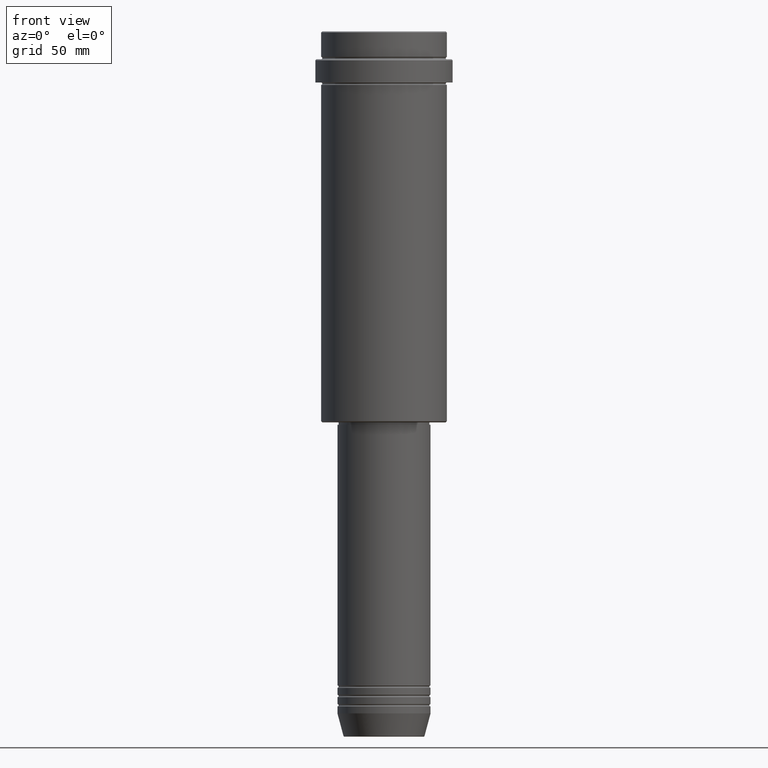
[diagram: clean part render]
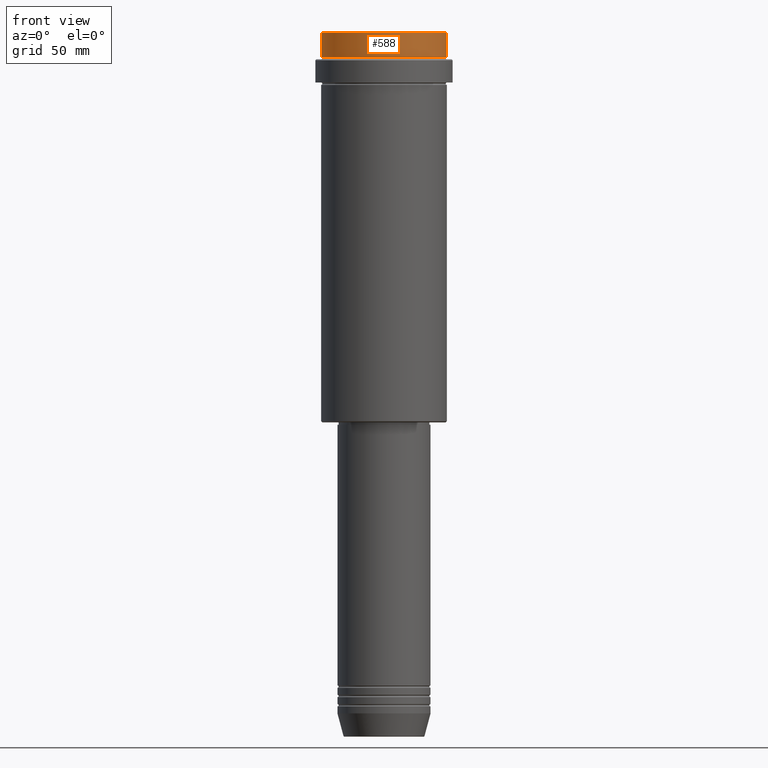
[diagram: same view with one face highlighted and labeled with its STEP entity id]
A machine part, front view. The second image highlights one B-rep face of the part: STEP entity #588.
In plain terms, the highlighted cylindrical surface (partial cylindrical patch) has radius 27 mm, axis along (-0, -0, 1).
Its self-contained STEP definition (entity closure, byte-faithful):
#12 = DIRECTION ( 'NONE',  ( 1.000000000000000000, 0.000000000000000000, 0.000000000000000000 ) ) ;
#32 = CARTESIAN_POINT ( 'NONE',  ( -27.00000000000000355, 3.306546357697854128E-15, -11.00000000000000178 ) ) ;
#34 = CARTESIAN_POINT ( 'NONE',  ( -27.00000000000000355, 3.306546357697854128E-15, -0.5000000000000073275 ) ) ;
#37 = CIRCLE ( 'NONE', #382, 27.00000000000000355 ) ;
#41 = FACE_OUTER_BOUND ( 'NONE', #883, .T. ) ;
#83 = VERTEX_POINT ( 'NONE', #32 ) ;
#85 = ORIENTED_EDGE ( 'NONE', *, *, #939, .T. ) ;
#95 = CIRCLE ( 'NONE', #983, 27.00000000000000355 ) ;
#107 = DIRECTION ( 'NONE',  ( 0.000000000000000000, 0.000000000000000000, -1.000000000000000000 ) ) ;
#116 = CYLINDRICAL_SURFACE ( 'NONE', #361, 27.00000000000000355 ) ;
#331 = ORIENTED_EDGE ( 'NONE', *, *, #570, .T. ) ;
#361 = AXIS2_PLACEMENT_3D ( 'NONE', #915, #1109, #688 ) ;
#382 = AXIS2_PLACEMENT_3D ( 'NONE', #994, #107, #12 ) ;
#403 = VECTOR ( 'NONE', #440, 1000.000000000000000 ) ;
#440 = DIRECTION ( 'NONE',  ( -0.000000000000000000, -0.000000000000000000, 1.000000000000000000 ) ) ;
#464 = DIRECTION ( 'NONE',  ( -0.000000000000000000, -0.000000000000000000, 1.000000000000000000 ) ) ;
#534 = LINE ( 'NONE', #980, #403 ) ;
#567 = CARTESIAN_POINT ( 'NONE',  ( 0.000000000000000000, 0.000000000000000000, -11.00000000000000178 ) ) ;
#570 = EDGE_CURVE ( 'NONE', #83, #737, #95, .T. ) ;
#574 = CARTESIAN_POINT ( 'NONE',  ( 27.00000000000000355, 0.000000000000000000, -11.00000000000000178 ) ) ;
#588 = ADVANCED_FACE ( 'NONE', ( #41 ), #116, .T. ) ;
#688 = DIRECTION ( 'NONE',  ( 1.000000000000000000, 0.000000000000000000, 0.000000000000000000 ) ) ;
#737 = VERTEX_POINT ( 'NONE', #574 ) ;
#755 = VECTOR ( 'NONE', #1328, 1000.000000000000000 ) ;
#854 = EDGE_CURVE ( 'NONE', #884, #1062, #37, .T. ) ;
#876 = CARTESIAN_POINT ( 'NONE',  ( -27.00000000000000355, 3.306546357697854128E-15, 0.000000000000000000 ) ) ;
#882 = EDGE_CURVE ( 'NONE', #83, #1062, #1107, .T. ) ;
#883 = EDGE_LOOP ( 'NONE', ( #1017, #331, #85, #1282 ) ) ;
#884 = VERTEX_POINT ( 'NONE', #1056 ) ;
#915 = CARTESIAN_POINT ( 'NONE',  ( 0.000000000000000000, 0.000000000000000000, 0.000000000000000000 ) ) ;
#939 = EDGE_CURVE ( 'NONE', #737, #884, #534, .T. ) ;
#980 = CARTESIAN_POINT ( 'NONE',  ( 27.00000000000000355, 0.000000000000000000, 0.000000000000000000 ) ) ;
#983 = AXIS2_PLACEMENT_3D ( 'NONE', #567, #464, #1211 ) ;
#994 = CARTESIAN_POINT ( 'NONE',  ( 0.000000000000000000, 0.000000000000000000, -0.5000000000000073275 ) ) ;
#1017 = ORIENTED_EDGE ( 'NONE', *, *, #882, .F. ) ;
#1056 = CARTESIAN_POINT ( 'NONE',  ( 27.00000000000000355, 0.000000000000000000, -0.5000000000000073275 ) ) ;
#1062 = VERTEX_POINT ( 'NONE', #34 ) ;
#1107 = LINE ( 'NONE', #876, #755 ) ;
#1109 = DIRECTION ( 'NONE',  ( -0.000000000000000000, -0.000000000000000000, 1.000000000000000000 ) ) ;
#1211 = DIRECTION ( 'NONE',  ( 1.000000000000000000, 0.000000000000000000, 0.000000000000000000 ) ) ;
#1282 = ORIENTED_EDGE ( 'NONE', *, *, #854, .T. ) ;
#1328 = DIRECTION ( 'NONE',  ( -0.000000000000000000, -0.000000000000000000, 1.000000000000000000 ) ) ;